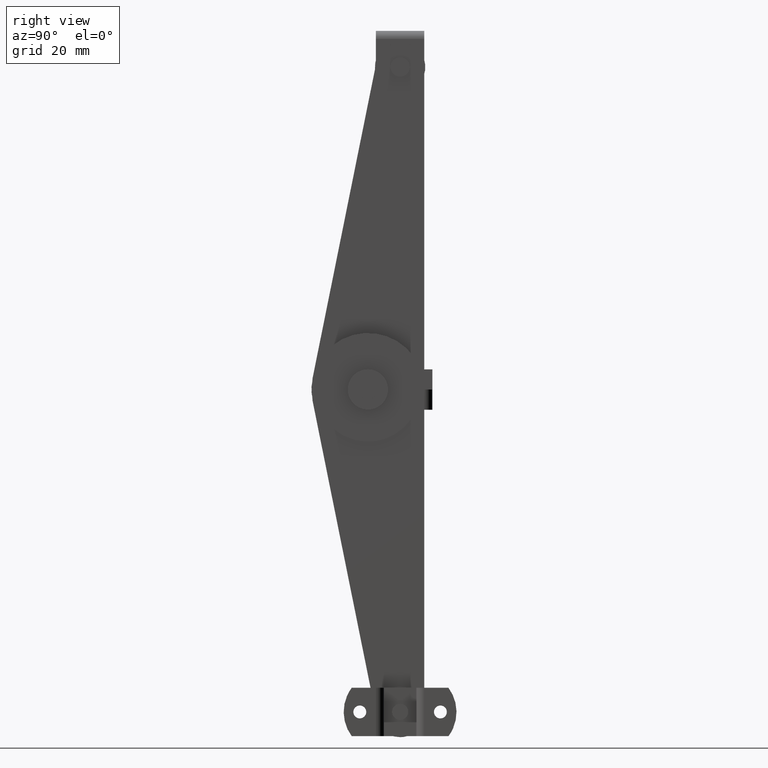
[diagram: clean part render]
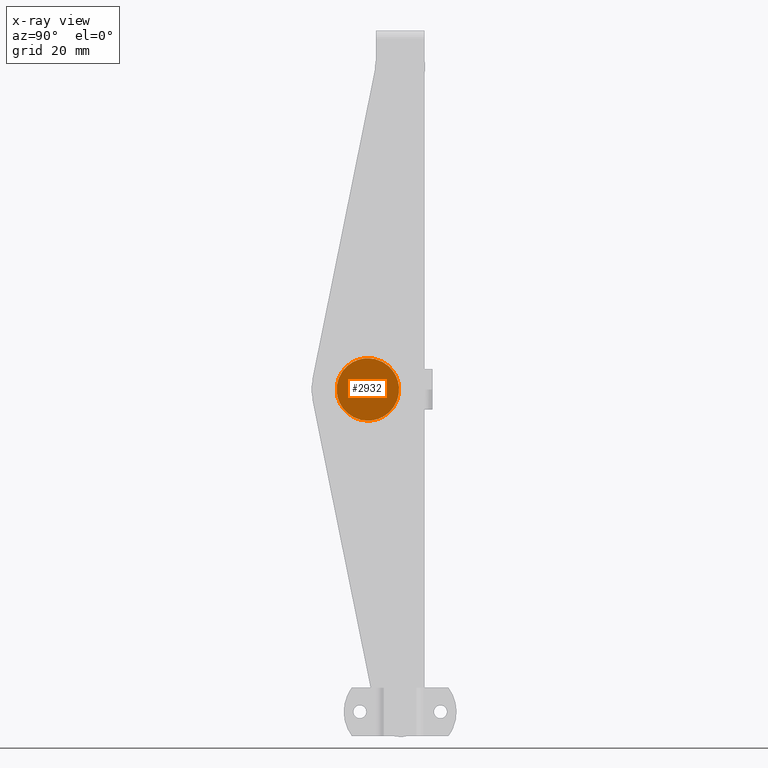
[diagram: x-ray — body ghosted, one internal face saturated and labeled with its STEP entity id]
A machine part, right view, then the same camera in x-ray: the body is ghosted and one INTERNAL B-rep face — a face not visible from any outside direction — is saturated and labeled: STEP entity #2932.
In plain terms, the highlighted face is a freeform B-spline surface patch.
Its self-contained STEP definition (entity closure, byte-faithful):
#2585=CARTESIAN_POINT('',(-9.500000316634893,-9.495376000598306,-0.117688643609387));
#2586=VERTEX_POINT('',#2585);
#2592=CARTESIAN_POINT('',(-9.500000316634891,-8.0,1.500000000000000));
#2593=VERTEX_POINT('',#2592);
#2594=CARTESIAN_POINT('',(-9.500000316634893,-9.495376000598307,-0.117688643609387));
#2595=CARTESIAN_POINT('',(-9.500000316634889,-9.500000000000000,-0.058935160529206));
#2596=CARTESIAN_POINT('',(-9.500000316634891,-9.500000000000000,4.898425E-016));
#2597=CARTESIAN_POINT('',(-9.500000316634891,-9.500000000000000,1.500000000000001));
#2598=CARTESIAN_POINT('',(-9.500000316634891,-8.0,1.500000000000000));
#2606=(BOUNDED_CURVE()B_SPLINE_CURVE(2,(#2594,#2595,#2596,#2597,#2598),.UNSPECIFIED.,.F.,.U.)B_SPLINE_CURVE_WITH_KNOTS((3,2,3),(0.736331300628727,0.750000000000000,1.0),.UNSPECIFIED.)CURVE()GEOMETRIC_REPRESENTATION_ITEM()RATIONAL_B_SPLINE_CURVE((0.969723356163385,0.983986122576618,1.0,0.707106781186548,1.0))REPRESENTATION_ITEM(''));
#2607=EDGE_CURVE('',#2586,#2593,#2606,.T.);
#2609=CARTESIAN_POINT('',(-9.500000316634893,-6.504623999401696,0.117688643609388));
#2610=VERTEX_POINT('',#2609);
#2611=CARTESIAN_POINT('',(-9.500000316634891,-8.0,1.500000000000000));
#2612=CARTESIAN_POINT('',(-9.500000316634891,-6.613414262545469,1.500000000000001));
#2613=CARTESIAN_POINT('',(-9.500000316634893,-6.504623999401696,0.117688643609388));
#2621=(BOUNDED_CURVE()B_SPLINE_CURVE(2,(#2611,#2612,#2613),.UNSPECIFIED.,.F.,.U.)B_SPLINE_CURVE_WITH_KNOTS((3,3),(0.0,0.236331300628727),.UNSPECIFIED.)CURVE()GEOMETRIC_REPRESENTATION_ITEM()RATIONAL_B_SPLINE_CURVE((1.0,0.723120658609930,0.969723356163385))REPRESENTATION_ITEM(''));
#2622=EDGE_CURVE('',#2593,#2610,#2621,.T.);
#2668=CARTESIAN_POINT('',(-9.500000316634891,-8.0,-1.500000000000000));
#2669=VERTEX_POINT('',#2668);
#2670=CARTESIAN_POINT('',(-9.500000316634893,-6.504623999401696,0.117688643609388));
#2671=CARTESIAN_POINT('',(-9.500000316634889,-6.500000000000001,0.058935160529207));
#2672=CARTESIAN_POINT('',(-9.500000316634891,-6.500000000000001,4.898425E-016));
#2673=CARTESIAN_POINT('',(-9.500000316634891,-6.500000000000003,-1.500000000000000));
#2674=CARTESIAN_POINT('',(-9.500000316634891,-8.0,-1.500000000000000));
#2682=(BOUNDED_CURVE()B_SPLINE_CURVE(2,(#2670,#2671,#2672,#2673,#2674),.UNSPECIFIED.,.F.,.U.)B_SPLINE_CURVE_WITH_KNOTS((3,2,3),(0.236331300628727,0.250000000000000,0.500000000000000),.UNSPECIFIED.)CURVE()GEOMETRIC_REPRESENTATION_ITEM()RATIONAL_B_SPLINE_CURVE((0.969723356163385,0.983986122576618,1.0,0.707106781186548,1.0))REPRESENTATION_ITEM(''));
#2683=EDGE_CURVE('',#2610,#2669,#2682,.T.);
#2685=CARTESIAN_POINT('',(-9.500000316634891,-8.0,-1.500000000000000));
#2686=CARTESIAN_POINT('',(-9.500000316634891,-9.386585737454535,-1.499999999999999));
#2687=CARTESIAN_POINT('',(-9.500000316634893,-9.495376000598307,-0.117688643609387));
#2695=(BOUNDED_CURVE()B_SPLINE_CURVE(2,(#2685,#2686,#2687),.UNSPECIFIED.,.F.,.U.)B_SPLINE_CURVE_WITH_KNOTS((3,3),(0.500000000000000,0.736331300628727),.UNSPECIFIED.)CURVE()GEOMETRIC_REPRESENTATION_ITEM()RATIONAL_B_SPLINE_CURVE((1.0,0.723120658609930,0.969723356163385))REPRESENTATION_ITEM(''));
#2696=EDGE_CURVE('',#2669,#2586,#2695,.T.);
#2750=CARTESIAN_POINT('',(-9.500000316634891,-0.273906614281623,0.608056737004265));
#2751=VERTEX_POINT('',#2750);
#2757=CARTESIAN_POINT('',(-9.500000316634891,-8.0,7.749984000000099));
#2758=VERTEX_POINT('',#2757);
#2759=CARTESIAN_POINT('',(-9.500000316634891,-8.0,7.749984000000099));
#2760=CARTESIAN_POINT('',(-9.500000316634893,-0.835988480750494,7.749984000000100));
#2761=CARTESIAN_POINT('',(-9.500000316634891,-0.273906614281623,0.608056737004265));
#2769=(BOUNDED_CURVE()B_SPLINE_CURVE(2,(#2759,#2760,#2761),.UNSPECIFIED.,.F.,.U.)B_SPLINE_CURVE_WITH_KNOTS((3,3),(0.0,0.236331300612399),.UNSPECIFIED.)CURVE()GEOMETRIC_REPRESENTATION_ITEM()RATIONAL_B_SPLINE_CURVE((1.0,0.723120658629059,0.969723356129309))REPRESENTATION_ITEM(''));
#2770=EDGE_CURVE('',#2758,#2751,#2769,.T.);
#2772=CARTESIAN_POINT('',(-9.500000316634889,-15.726093385718380,-0.608056737004266));
#2773=VERTEX_POINT('',#2772);
#2774=CARTESIAN_POINT('',(-9.500000316634889,-15.726093385718379,-0.608056737004266));
#2775=CARTESIAN_POINT('',(-9.500000316634891,-15.749984000000101,-0.304497701128851));
#2776=CARTESIAN_POINT('',(-9.500000316634891,-15.749984000000101,-1.183291E-030));
#2777=CARTESIAN_POINT('',(-9.500000316634891,-15.749984000000104,7.749984000000100));
#2778=CARTESIAN_POINT('',(-9.500000316634891,-8.0,7.749984000000099));
#2786=(BOUNDED_CURVE()B_SPLINE_CURVE(2,(#2774,#2775,#2776,#2777,#2778),.UNSPECIFIED.,.F.,.U.)B_SPLINE_CURVE_WITH_KNOTS((3,2,3),(0.736331300612399,0.750000000000000,1.0),.UNSPECIFIED.)CURVE()GEOMETRIC_REPRESENTATION_ITEM()RATIONAL_B_SPLINE_CURVE((0.969723356129309,0.983986122557488,1.0,0.707106781186548,1.0))REPRESENTATION_ITEM(''));
#2787=EDGE_CURVE('',#2773,#2758,#2786,.T.);
#2863=CARTESIAN_POINT('',(-9.500000316634891,-8.0,-7.749984000000099));
#2864=VERTEX_POINT('',#2863);
#2865=CARTESIAN_POINT('',(-9.500000316634891,-8.0,-7.749984000000099));
#2866=CARTESIAN_POINT('',(-9.500000316634891,-15.164011519249462,-7.749984000000101));
#2867=CARTESIAN_POINT('',(-9.500000316634889,-15.726093385718375,-0.608056737004266));
#2875=(BOUNDED_CURVE()B_SPLINE_CURVE(2,(#2865,#2866,#2867),.UNSPECIFIED.,.F.,.U.)B_SPLINE_CURVE_WITH_KNOTS((3,3),(0.500000000000000,0.736331300612398),.UNSPECIFIED.)CURVE()GEOMETRIC_REPRESENTATION_ITEM()RATIONAL_B_SPLINE_CURVE((1.0,0.723120658629061,0.969723356129307))REPRESENTATION_ITEM(''));
#2876=EDGE_CURVE('',#2864,#2773,#2875,.T.);
#2878=CARTESIAN_POINT('',(-9.500000316634891,-0.273906614281623,0.608056737004265));
#2879=CARTESIAN_POINT('',(-9.500000316634891,-0.250015999999901,0.304497701128850));
#2880=CARTESIAN_POINT('',(-9.500000316634891,-0.250015999999901,-1.183291E-030));
#2881=CARTESIAN_POINT('',(-9.500000316634891,-0.250015999999900,-7.749984000000100));
#2882=CARTESIAN_POINT('',(-9.500000316634891,-8.0,-7.749984000000099));
#2890=(BOUNDED_CURVE()B_SPLINE_CURVE(2,(#2878,#2879,#2880,#2881,#2882),.UNSPECIFIED.,.F.,.U.)B_SPLINE_CURVE_WITH_KNOTS((3,2,3),(0.236331300612399,0.250000000000000,0.500000000000000),.UNSPECIFIED.)CURVE()GEOMETRIC_REPRESENTATION_ITEM()RATIONAL_B_SPLINE_CURVE((0.969723356129309,0.983986122557488,1.0,0.707106781186548,1.0))REPRESENTATION_ITEM(''));
#2891=EDGE_CURVE('',#2751,#2864,#2890,.T.);
#2915=CARTESIAN_POINT('',(-9.500000316634869,0.521841740116867,-8.524207170678778));
#2916=CARTESIAN_POINT('',(-9.500000316634869,-16.521842155858408,-8.524207170678778));
#2917=CARTESIAN_POINT('',(-9.500000316634869,0.521841740116867,8.524206616356727));
#2918=CARTESIAN_POINT('',(-9.500000316634869,-16.521842155858408,8.524206616356727));
#2919=B_SPLINE_SURFACE_WITH_KNOTS('',1,1,((#2915,#2917),(#2916,#2918)),.UNSPECIFIED.,.F.,.F.,.U.,(2,2),(2,2),(0.0,17.043683895975271),(0.0,17.048413787035511),.UNSPECIFIED.);
#2920=ORIENTED_EDGE('',*,*,#2770,.T.);
#2921=ORIENTED_EDGE('',*,*,#2891,.T.);
#2922=ORIENTED_EDGE('',*,*,#2876,.T.);
#2923=ORIENTED_EDGE('',*,*,#2787,.T.);
#2924=EDGE_LOOP('',(#2920,#2921,#2922,#2923));
#2925=FACE_OUTER_BOUND('',#2924,.T.);
#2926=ORIENTED_EDGE('',*,*,#2696,.F.);
#2927=ORIENTED_EDGE('',*,*,#2683,.F.);
#2928=ORIENTED_EDGE('',*,*,#2622,.F.);
#2929=ORIENTED_EDGE('',*,*,#2607,.F.);
#2930=EDGE_LOOP('',(#2926,#2927,#2928,#2929));
#2931=FACE_BOUND('',#2930,.T.);
#2932=ADVANCED_FACE('',(#2925,#2931),#2919,.T.);